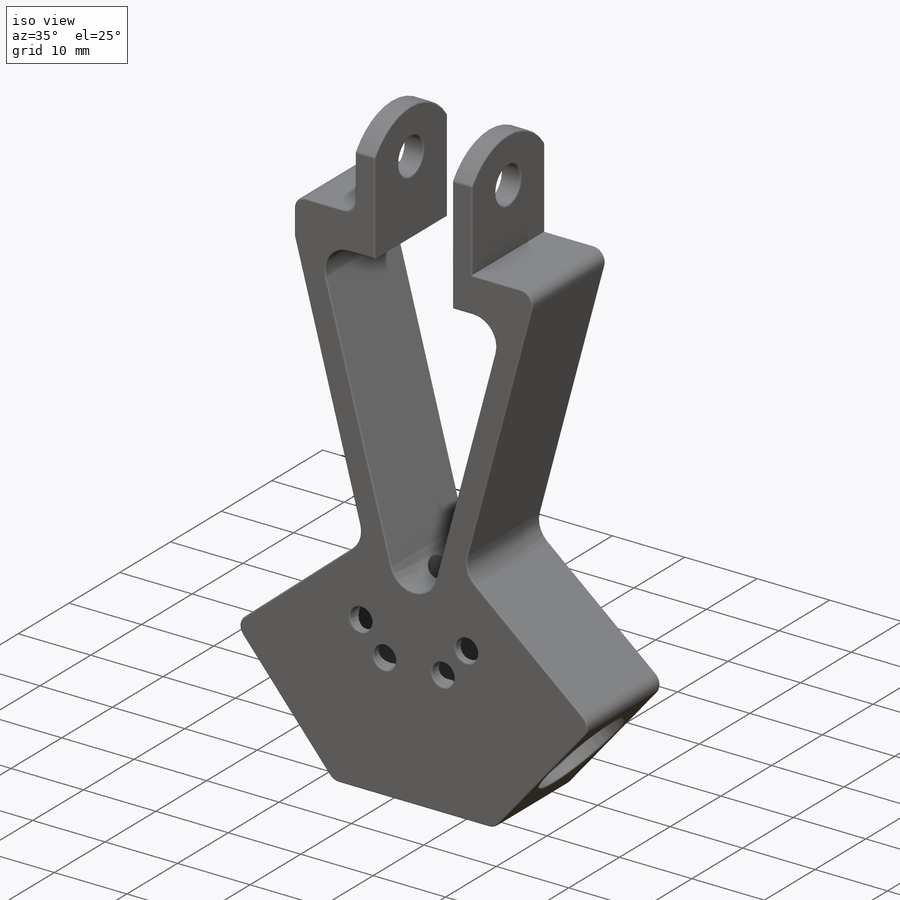
[diagram: iso view]
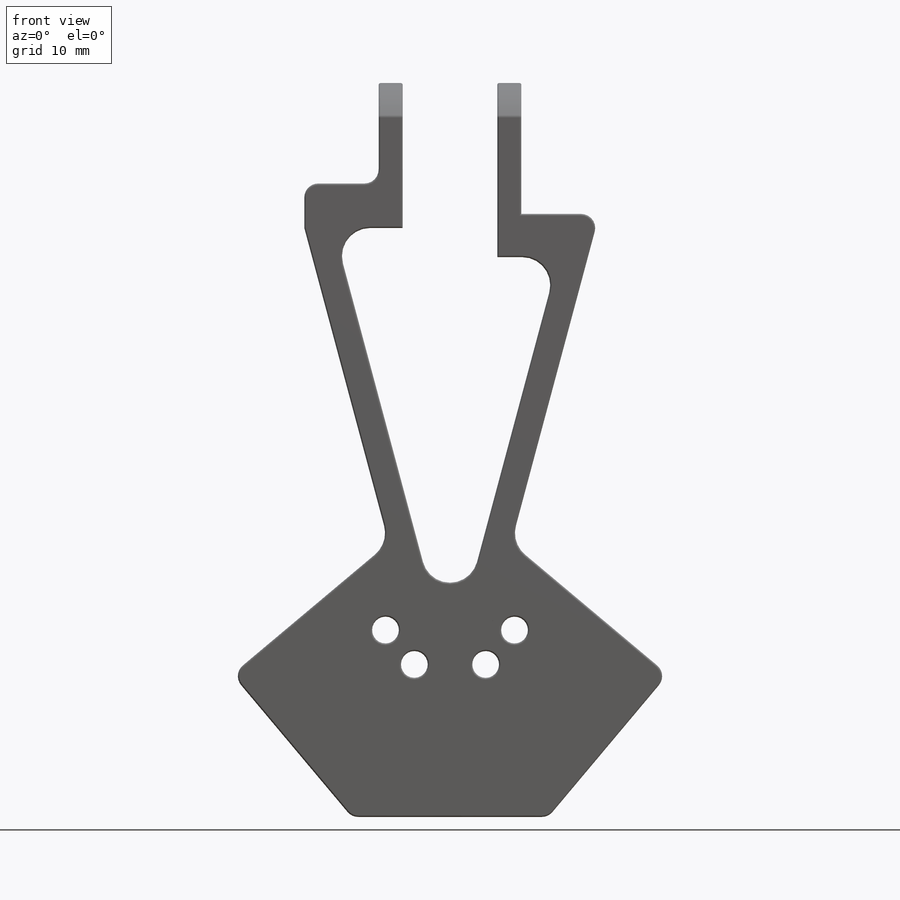
[diagram: front view]
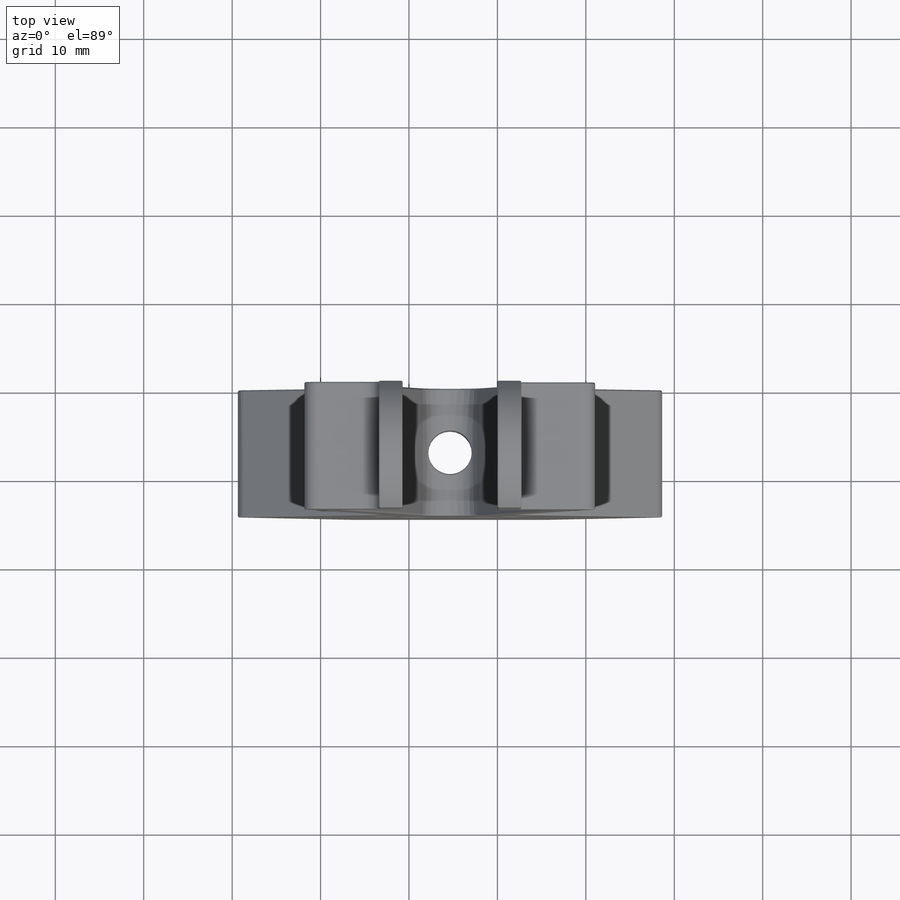
[diagram: top view]
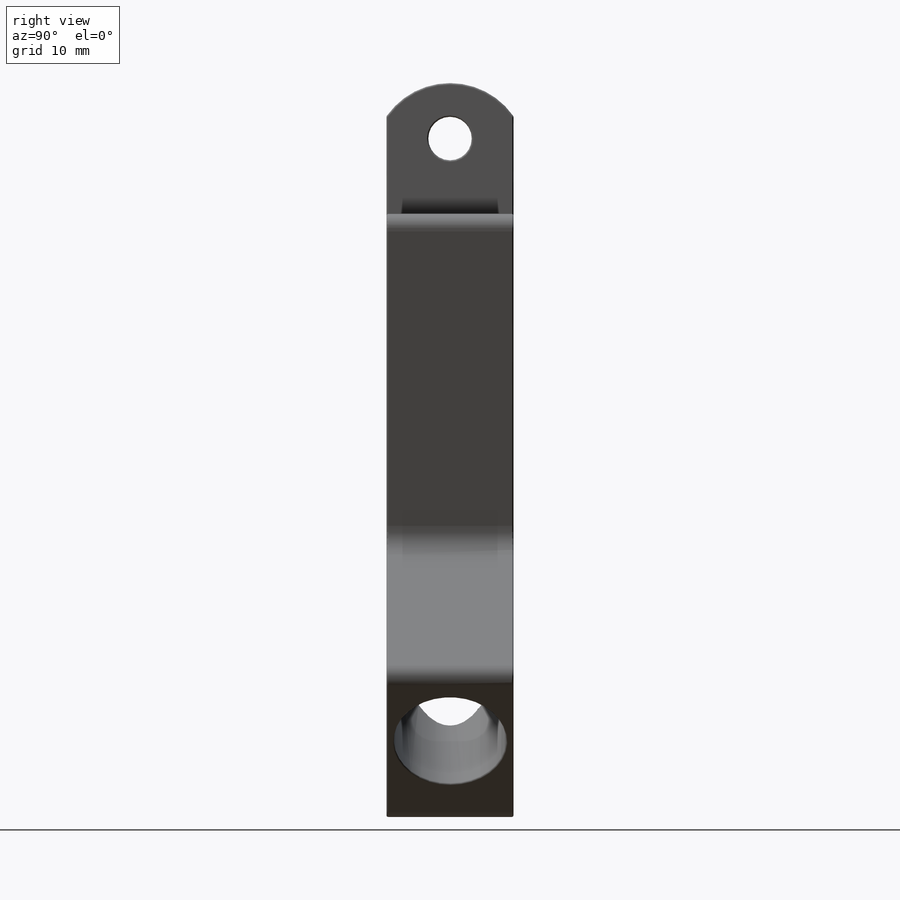
[diagram: right view]
SOLIDWORKS PART (.sldprt)
format: sldprt  version: not decoded by parser v0  size: 737,792 bytes
history: native  units: mm
features: sketch x12, fillet x5, cut_extrude x5, hole x2, material x1, extrude x1 (+16 scaffold rows collapsed)
feature tree (42):
  scaffold x16  (default folders/planes/origin — collapsed)
  material  "Material <not specified>"
  sketch  "Sketch1"  dims[c1.D14=6.35mm c1.D4=~17.169401mm c2.D4=50.0deg c2.D5=13.5255mm c3.D5=90.0deg c3.D15=~45.15104mm c3.D16=~68.775249mm c4.D16=15.0deg c4.D17=~50.02846mm c4.D12=~21.765148mm c5.D12=50.0deg c5.D1=49.276mm c5.D2=11.1125mm c5.D3=11.1125mm c5.D6=71.6407mm c5.D7=68.199mm c5.D8=5.3594mm c5.D9=5.3594mm c5.D10=8.0645mm c5.D11=8.0645mm c6.D12=4.7244mm c6.D13=11.1125mm c6.D17=3.175mm c6.D18=3.175mm c6.D19=4.8895mm c6.D20=82.9945mm]
  extrude  "Extrude1"  Depth=14.3637mm
  fillet  "Fillet1"  Radius=1.5875mm
  fillet  "Fillet2"  Radius=3.175mm
  sketch  "Sketch9"  dims[D1=5.08mm]
  hole  "#10 (0.1935) Diameter Hole3"  Diameter=4.9149mm Depth=32.7025mm
  sketch  "3DSketch3"
  sketch  "Sketch11"  dims[hole-wizard template sketch: 60 standard entries collapsed; hole parameters kept: c18.Thru Hole Depth=32.7025mm]
  sketch  "Sketch12"
  cut_extrude  "Extrude3"  [1 undecoded]
  fillet  "Fillet3"  Radius=0.396875mm
  sketch  "Sketch14"  dims[D2=12.7mm D1=9.8425mm]
  cut_extrude  "Extrude5"  Depth=19.05mm
  sketch  "Sketch15"  dims[D2=12.7mm D1=9.8425mm]
  cut_extrude  "Extrude6"  Depth=19.05mm
  sketch  "Sketch16"  dims[D1=12.7mm]
  cut_extrude  "Extrude7"  Depth=19.05mm
  sketch  "Sketch17"
  hole  "#10 (0.1935) Diameter Hole4"  Diameter=4.9149mm Depth=7.43966mm
  sketch  "3DSketch4"
  sketch  "Sketch18"  dims[hole-wizard template sketch: 60 standard entries collapsed; hole parameters kept: c18.Thru Hole Depth=~7.43966mm]
  sketch  "Sketch19"  dims[c1.D7=3.0353mm c1.D1=16.51mm c1.D2=16.51mm c1.D3=9.8425mm c1.D4=9.8425mm c2.D1=2.54mm c2.D2=2.54mm c2.D5=2.54mm c2.D6=2.54mm]
  cut_extrude  "Extrude8"  [1 undecoded]
  fillet  "Fillet4"  Radius=1.5875mm
  fillet  "Fillet5"  Radius=0.198437mm
decode coverage: 19 of 25 modeling features carry decoded parameters
note: ~ marks probable driven/reference dimensions
note: 2 parameter values undecoded
note: suppression state not decoded; provenance and decode notes live in map.json
